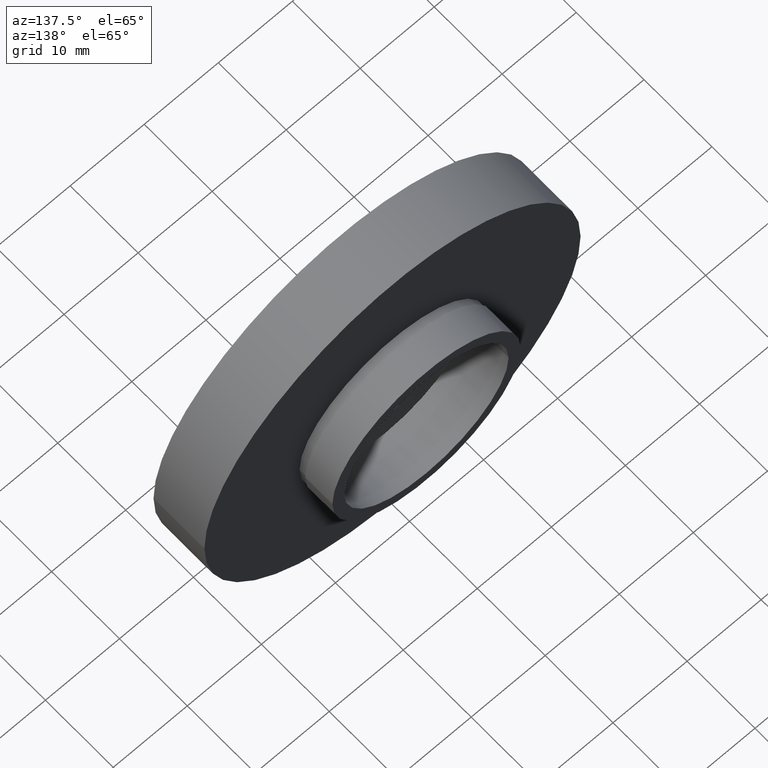
[diagram: clean part render]
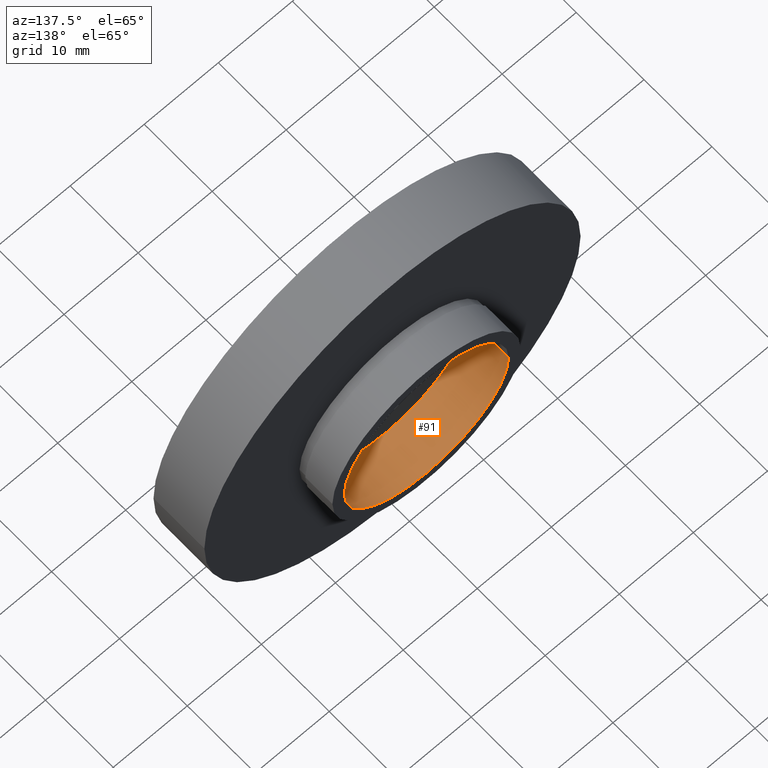
[diagram: same view with one face highlighted and labeled with its STEP entity id]
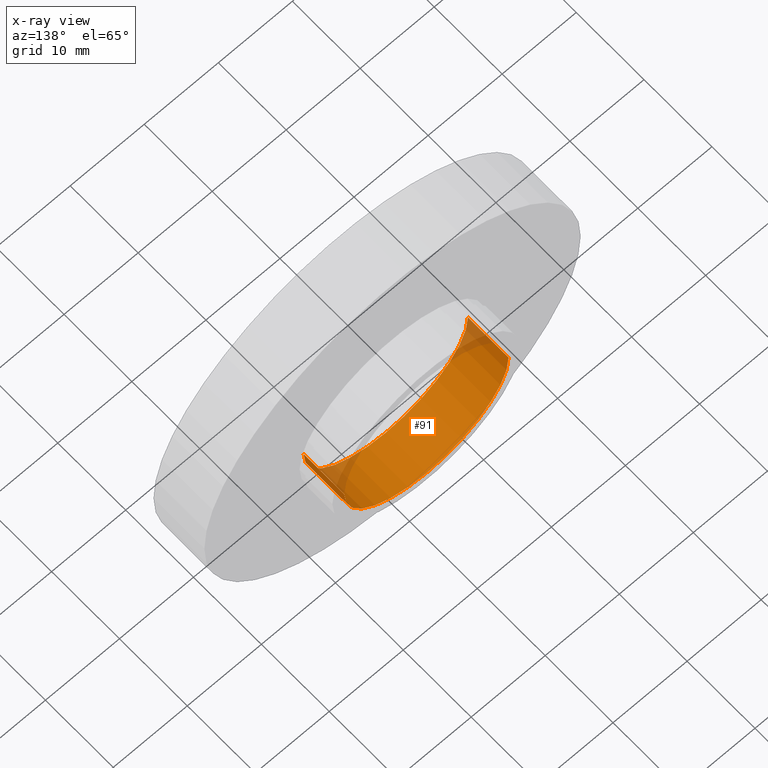
[diagram: x-ray of the same camera — body ghosted, the highlighted face saturated]
A machine part, auxiliary view. The second image highlights one B-rep face of the part: STEP entity #91.
The next image is the same camera in x-ray: the body ghosted, the highlighted face saturated — about 10% of this face is hidden behind the body in this view.
In plain terms, the highlighted cylindrical surface (partial cylindrical patch) has radius 11.1 mm, axis along (-0, 1, -0).
Its self-contained STEP definition (entity closure, byte-faithful):
#6 = DIRECTION ( 'NONE',  ( -1.224646799147351000E-016, 1.000000000000000000, -0.0000000000000000000 ) ) ;
#21 = CYLINDRICAL_SURFACE ( 'NONE', #488, 11.10000000000000100 ) ;
#43 = LINE ( 'NONE', #577, #574 ) ;
#51 = VERTEX_POINT ( 'NONE', #334 ) ;
#57 = ORIENTED_EDGE ( 'NONE', *, *, #576, .F. ) ;
#73 = DIRECTION ( 'NONE',  ( -1.224646799147351000E-016, 1.000000000000000000, -0.0000000000000000000 ) ) ;
#74 = CARTESIAN_POINT ( 'NONE',  ( 11.10000000000000100, 6.499999999999999100, 1.359357947053562400E-015 ) ) ;
#89 = DIRECTION ( 'NONE',  ( -1.224646799147351000E-016, 1.000000000000000000, -0.0000000000000000000 ) ) ;
#91 = ADVANCED_FACE ( 'NONE', ( #312 ), #21, .F. ) ;
#116 = AXIS2_PLACEMENT_3D ( 'NONE', #619, #89, #444 ) ;
#118 = ORIENTED_EDGE ( 'NONE', *, *, #517, .T. ) ;
#120 = CARTESIAN_POINT ( 'NONE',  ( 5.371323195044474300E-016, 12.49999999999999600, 0.0000000000000000000 ) ) ;
#132 = EDGE_LOOP ( 'NONE', ( #57, #321, #118, #251 ) ) ;
#153 = DIRECTION ( 'NONE',  ( -1.224646799147351000E-016, 1.000000000000000000, -0.0000000000000000000 ) ) ;
#182 = AXIS2_PLACEMENT_3D ( 'NONE', #120, #73, #376 ) ;
#243 = CARTESIAN_POINT ( 'NONE',  ( -11.10000000000000100, 12.49999999999999500, 0.0000000000000000000 ) ) ;
#250 = CARTESIAN_POINT ( 'NONE',  ( -11.09999999999999800, 6.499999999999995600, 0.0000000000000000000 ) ) ;
#251 = ORIENTED_EDGE ( 'NONE', *, *, #527, .F. ) ;
#274 = VERTEX_POINT ( 'NONE', #250 ) ;
#312 = FACE_OUTER_BOUND ( 'NONE', #132, .T. ) ;
#321 = ORIENTED_EDGE ( 'NONE', *, *, #545, .T. ) ;
#334 = CARTESIAN_POINT ( 'NONE',  ( 11.10000000000000100, 12.49999999999999800, 1.359357947053562400E-015 ) ) ;
#370 = DIRECTION ( 'NONE',  ( -1.224646799147351000E-016, 1.000000000000000000, -0.0000000000000000000 ) ) ;
#376 = DIRECTION ( 'NONE',  ( -1.000000000000000000, -1.562813942321447500E-016, 0.0000000000000000000 ) ) ;
#416 = VERTEX_POINT ( 'NONE', #74 ) ;
#444 = DIRECTION ( 'NONE',  ( -1.000000000000000000, -1.562813942321447800E-016, 0.0000000000000000000 ) ) ;
#450 = CIRCLE ( 'NONE', #116, 11.10000000000000000 ) ;
#458 = DIRECTION ( 'NONE',  ( -1.000000000000000000, 0.0000000000000000000, 0.0000000000000000000 ) ) ;
#488 = AXIS2_PLACEMENT_3D ( 'NONE', #569, #370, #458 ) ;
#516 = VECTOR ( 'NONE', #6, 1000.000000000000000 ) ;
#517 = EDGE_CURVE ( 'NONE', #51, #582, #595, .T. ) ;
#518 = CARTESIAN_POINT ( 'NONE',  ( 11.10000000000000100, 16.88601823708207700, 1.359357947053562400E-015 ) ) ;
#527 = EDGE_CURVE ( 'NONE', #274, #582, #43, .T. ) ;
#545 = EDGE_CURVE ( 'NONE', #416, #51, #546, .T. ) ;
#546 = LINE ( 'NONE', #518, #516 ) ;
#569 = CARTESIAN_POINT ( 'NONE',  ( 0.0000000000000000000, 16.88601823708207700, 0.0000000000000000000 ) ) ;
#574 = VECTOR ( 'NONE', #153, 1000.000000000000000 ) ;
#576 = EDGE_CURVE ( 'NONE', #416, #274, #450, .T. ) ;
#577 = CARTESIAN_POINT ( 'NONE',  ( -11.10000000000000100, 16.88601823708207700, 0.0000000000000000000 ) ) ;
#582 = VERTEX_POINT ( 'NONE', #243 ) ;
#595 = CIRCLE ( 'NONE', #182, 11.10000000000000100 ) ;
#619 = CARTESIAN_POINT ( 'NONE',  ( 1.271920398992858000E-015, 6.499999999999997300, 0.0000000000000000000 ) ) ;